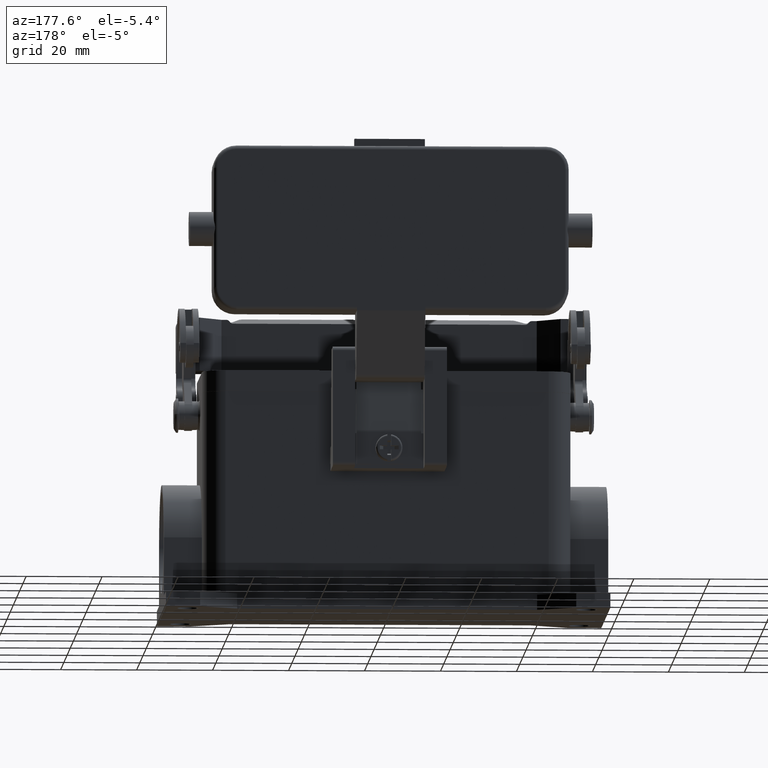
[diagram: clean part render]
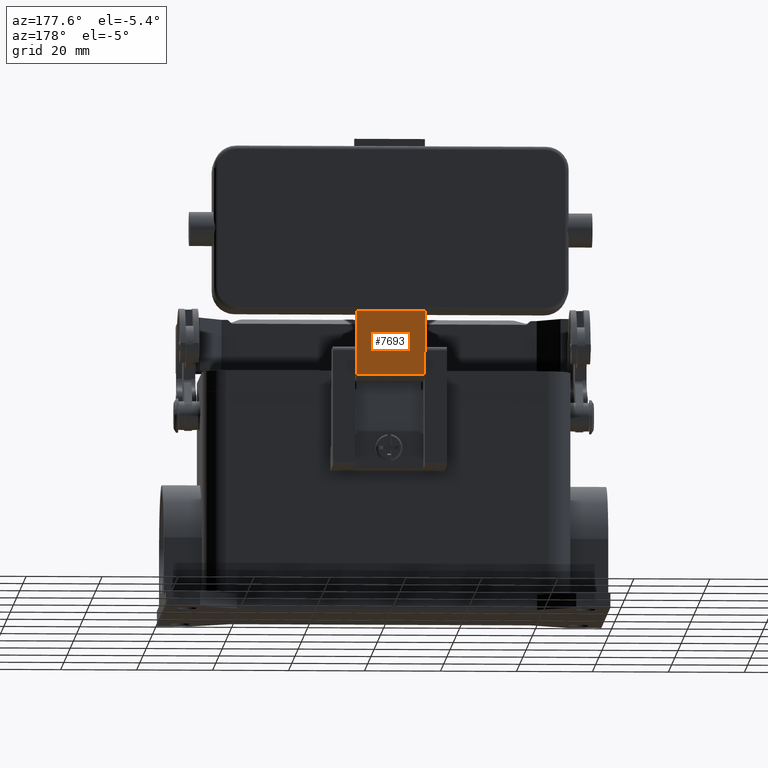
[diagram: same view with one face highlighted and labeled with its STEP entity id]
A machine part, auxiliary view. The second image highlights one B-rep face of the part: STEP entity #7693.
In plain terms, the highlighted planar face has unit normal (0, 0.9511, -0.309).
Its self-contained STEP definition (entity closure, byte-faithful):
#6657=CARTESIAN_POINT('',(-9.0,47.750000000000050,42.500000000000007));
#6658=VERTEX_POINT('',#6657);
#6674=CARTESIAN_POINT('',(9.0,47.750000000000050,42.500000000000007));
#6675=VERTEX_POINT('',#6674);
#6682=CARTESIAN_POINT('',(9.0,47.750000000000050,42.500000000000007));
#6683=DIRECTION('',(-1.0,0.0,0.0));
#6684=VECTOR('',#6683,18.0);
#6685=LINE('',#6682,#6684);
#6686=EDGE_CURVE('',#6675,#6658,#6685,.T.);
#7466=CARTESIAN_POINT('',(-9.0,42.400676298358853,26.036474508437593));
#7467=VERTEX_POINT('',#7466);
#7527=CARTESIAN_POINT('',(-9.0,42.400676298358853,26.036474508437593));
#7528=DIRECTION('',(0.0,0.309016994374949,0.951056516295153));
#7529=VECTOR('',#7528,17.310775132161638);
#7530=LINE('',#7527,#7529);
#7531=EDGE_CURVE('',#7467,#6658,#7530,.T.);
#7670=CARTESIAN_POINT('',(0.0,47.750000000000050,42.500000000000007));
#7671=DIRECTION('',(0.0,0.951056516295153,-0.309016994374949));
#7672=DIRECTION('',(0.0,0.309016994374949,0.951056516295153));
#7673=AXIS2_PLACEMENT_3D('',#7670,#7671,#7672);
#7674=PLANE('',#7673);
#7675=CARTESIAN_POINT('',(9.0,42.400676298358853,26.036474508437593));
#7676=VERTEX_POINT('',#7675);
#7677=CARTESIAN_POINT('',(9.0,47.750000000000050,42.500000000000007));
#7678=DIRECTION('',(0.0,-0.309016994374949,-0.951056516295153));
#7679=VECTOR('',#7678,17.310775132161638);
#7680=LINE('',#7677,#7679);
#7681=EDGE_CURVE('',#6675,#7676,#7680,.T.);
#7682=ORIENTED_EDGE('',*,*,#7681,.T.);
#7683=CARTESIAN_POINT('',(9.0,42.400676298358853,26.036474508437593));
#7684=DIRECTION('',(-1.0,0.0,0.0));
#7685=VECTOR('',#7684,18.0);
#7686=LINE('',#7683,#7685);
#7687=EDGE_CURVE('',#7676,#7467,#7686,.T.);
#7688=ORIENTED_EDGE('',*,*,#7687,.T.);
#7689=ORIENTED_EDGE('',*,*,#7531,.T.);
#7690=ORIENTED_EDGE('',*,*,#6686,.F.);
#7691=EDGE_LOOP('',(#7682,#7688,#7689,#7690));
#7692=FACE_OUTER_BOUND('',#7691,.T.);
#7693=ADVANCED_FACE('',(#7692),#7674,.T.);